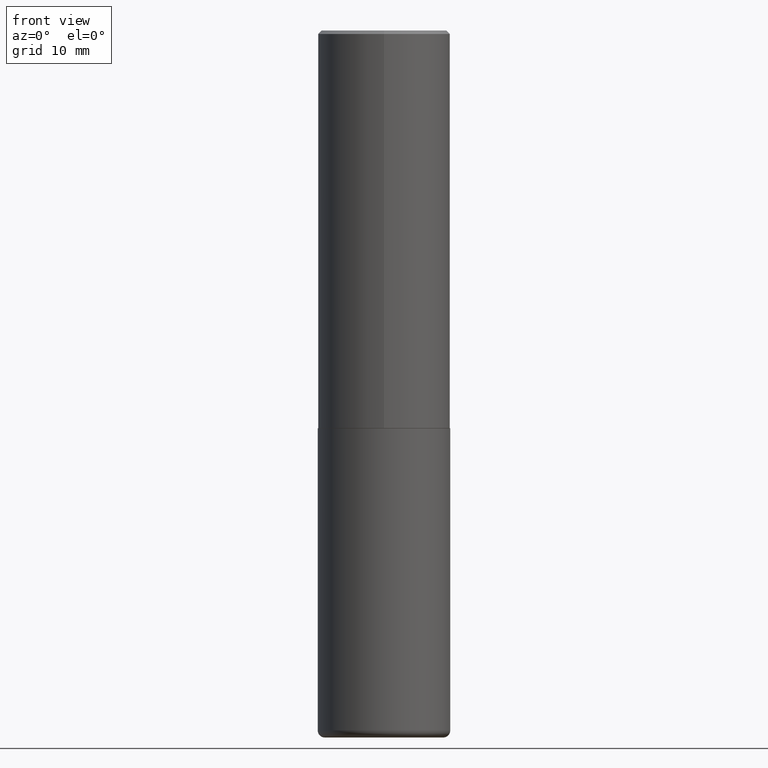
[diagram: clean part render]
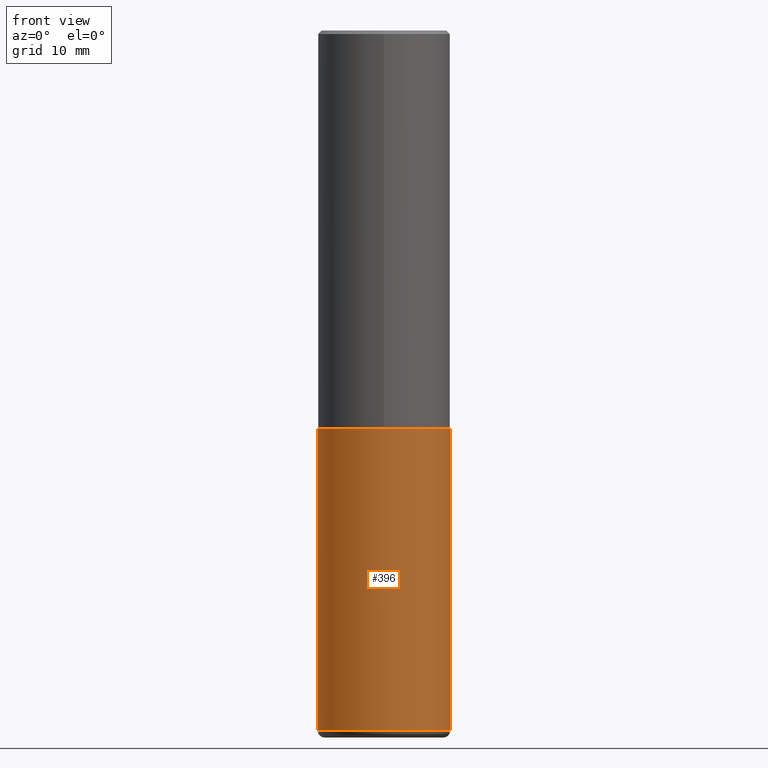
[diagram: same view with one face highlighted and labeled with its STEP entity id]
A machine part, front view. The second image highlights one B-rep face of the part: STEP entity #396.
In plain terms, the highlighted cylindrical surface (partial cylindrical patch) has radius 9.525 mm, axis along (-0, 0, 1).
Its self-contained STEP definition (entity closure, byte-faithful):
#8 = AXIS2_PLACEMENT_3D ( 'NONE', #357, #385, #226 ) ;
#15 = VECTOR ( 'NONE', #237, 39.37007874015748143 ) ;
#32 = VERTEX_POINT ( 'NONE', #393 ) ;
#36 = DIRECTION ( 'NONE',  ( -2.445468806185136597E-29, 3.491481338843145583E-15, 1.000000000000000000 ) ) ;
#39 = EDGE_CURVE ( 'NONE', #392, #32, #266, .T. ) ;
#50 = EDGE_CURVE ( 'NONE', #354, #282, #233, .T. ) ;
#54 = DIRECTION ( 'NONE',  ( -2.445468806185136597E-29, 3.491481338843145583E-15, 1.000000000000000000 ) ) ;
#63 = ORIENTED_EDGE ( 'NONE', *, *, #397, .F. ) ;
#100 = AXIS2_PLACEMENT_3D ( 'NONE', #198, #36, #355 ) ;
#115 = CARTESIAN_POINT ( 'NONE',  ( 0.000000000000000000, 0.000000000000000000, 0.000000000000000000 ) ) ;
#116 = CYLINDRICAL_SURFACE ( 'NONE', #291, 0.3749999999999999445 ) ;
#122 = ORIENTED_EDGE ( 'NONE', *, *, #50, .F. ) ;
#152 = CARTESIAN_POINT ( 'NONE',  ( -0.3750000000000000555, -8.176514298007592183E-15, -2.249999999999999556 ) ) ;
#160 = EDGE_LOOP ( 'NONE', ( #63, #168, #220, #122 ) ) ;
#168 = ORIENTED_EDGE ( 'NONE', *, *, #39, .T. ) ;
#173 = EDGE_CURVE ( 'NONE', #32, #282, #307, .T. ) ;
#187 = DIRECTION ( 'NONE',  ( 1.000000000000000000, -6.982962677686266711E-15, 4.876176775795935793E-29 ) ) ;
#188 = LINE ( 'NONE', #416, #362 ) ;
#198 = CARTESIAN_POINT ( 'NONE',  ( 5.502304813916556222E-29, -7.855833012397076871E-15, -2.249999999999999556 ) ) ;
#209 = DIRECTION ( 'NONE',  ( -2.445468806185136877E-29, 3.491481338843145188E-15, 1.000000000000000000 ) ) ;
#219 = CARTESIAN_POINT ( 'NONE',  ( -0.3750000000000000555, -1.116173084271848161E-14, -3.960000000000000409 ) ) ;
#220 = ORIENTED_EDGE ( 'NONE', *, *, #173, .T. ) ;
#226 = DIRECTION ( 'NONE',  ( 1.000000000000000000, -6.982962677686263555E-15, 0.000000000000000000 ) ) ;
#233 = CIRCLE ( 'NONE', #100, 0.3750000000000000555 ) ;
#237 = DIRECTION ( 'NONE',  ( -2.445468806185136877E-29, 3.491481338843145188E-15, 1.000000000000000000 ) ) ;
#266 = CIRCLE ( 'NONE', #8, 0.3749999999999999445 ) ;
#282 = VERTEX_POINT ( 'NONE', #335 ) ;
#291 = AXIS2_PLACEMENT_3D ( 'NONE', #115, #54, #187 ) ;
#307 = LINE ( 'NONE', #369, #15 ) ;
#335 = CARTESIAN_POINT ( 'NONE',  ( 0.3750000000000000555, -1.047444401652942689E-14, -2.249999999999999556 ) ) ;
#354 = VERTEX_POINT ( 'NONE', #152 ) ;
#355 = DIRECTION ( 'NONE',  ( 1.000000000000000000, -6.982962677686266711E-15, 0.000000000000000000 ) ) ;
#357 = CARTESIAN_POINT ( 'NONE',  ( 9.684056472493141327E-29, -1.382626610181885731E-14, -3.960000000000000409 ) ) ;
#362 = VECTOR ( 'NONE', #209, 39.37007874015748143 ) ;
#369 = CARTESIAN_POINT ( 'NONE',  ( 0.3749999999999999445, -2.618611004132349622E-15, 1.828566290923475642E-29 ) ) ;
#374 = FACE_OUTER_BOUND ( 'NONE', #160, .T. ) ;
#385 = DIRECTION ( 'NONE',  ( -2.445468806185136597E-29, 3.491481338843145583E-15, 1.000000000000000000 ) ) ;
#392 = VERTEX_POINT ( 'NONE', #219 ) ;
#393 = CARTESIAN_POINT ( 'NONE',  ( 0.3750000000000000555, -1.644487710595120733E-14, -3.960000000000000409 ) ) ;
#396 = ADVANCED_FACE ( 'NONE', ( #374 ), #116, .T. ) ;
#397 = EDGE_CURVE ( 'NONE', #392, #354, #188, .T. ) ;
#416 = CARTESIAN_POINT ( 'NONE',  ( -0.3749999999999999445, 2.664535259100375303E-15, -1.844600658845589318E-29 ) ) ;